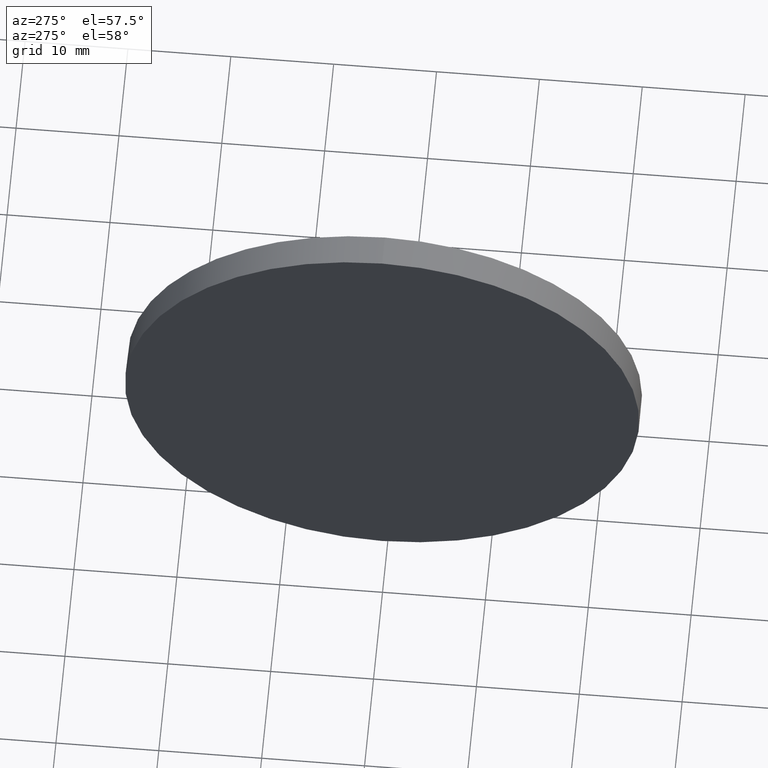
[diagram: clean part render]
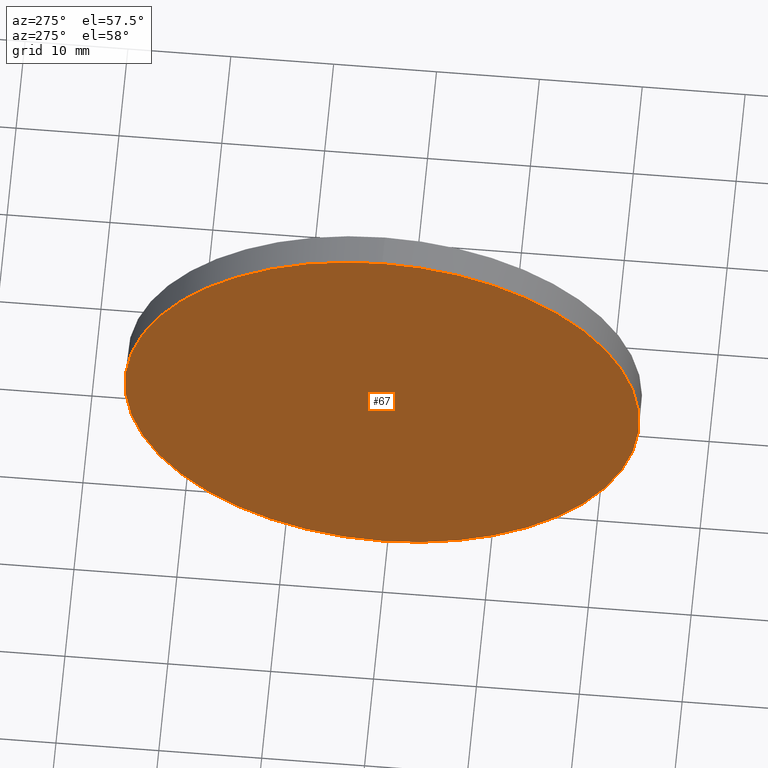
[diagram: same view with one face highlighted and labeled with its STEP entity id]
A machine part, auxiliary view. The second image highlights one B-rep face of the part: STEP entity #67.
In plain terms, the highlighted planar face has unit normal (1, 0, 0).
Its self-contained STEP definition (entity closure, byte-faithful):
#5 = CARTESIAN_POINT ( 'NONE',  ( 515.1917518471264000, 110.4965729746752500, -24.99999999999999300 ) ) ;
#23 = DIRECTION ( 'NONE',  ( -1.000000000000000000, -0.0000000000000000000, -0.0000000000000000000 ) ) ;
#28 = CARTESIAN_POINT ( 'NONE',  ( 515.1917518471264000, 110.4965729746752500, 0.0000000000000000000 ) ) ;
#44 = EDGE_LOOP ( 'NONE', ( #112, #144 ) ) ;
#51 = EDGE_CURVE ( 'NONE', #68, #141, #101, .T. ) ;
#67 = ADVANCED_FACE ( 'NONE', ( #98 ), #174, .F. ) ;
#68 = VERTEX_POINT ( 'NONE', #5 ) ;
#74 = EDGE_CURVE ( 'NONE', #141, #68, #123, .T. ) ;
#78 = CARTESIAN_POINT ( 'NONE',  ( 515.1917518471264000, 110.4965729746752500, 24.99999999999999300 ) ) ;
#88 = CARTESIAN_POINT ( 'NONE',  ( 515.1917518471264000, 110.4965729746752500, 0.0000000000000000000 ) ) ;
#98 = FACE_OUTER_BOUND ( 'NONE', #44, .T. ) ;
#101 = CIRCLE ( 'NONE', #105, 24.99999999999999300 ) ;
#103 = DIRECTION ( 'NONE',  ( 1.000000000000000000, 0.0000000000000000000, 0.0000000000000000000 ) ) ;
#105 = AXIS2_PLACEMENT_3D ( 'NONE', #28, #155, #154 ) ;
#109 = CARTESIAN_POINT ( 'NONE',  ( 515.1917518471264000, 110.4965729746752500, 0.0000000000000000000 ) ) ;
#112 = ORIENTED_EDGE ( 'NONE', *, *, #74, .T. ) ;
#116 = DIRECTION ( 'NONE',  ( 0.0000000000000000000, 0.0000000000000000000, -1.000000000000000000 ) ) ;
#123 = CIRCLE ( 'NONE', #186, 24.99999999999999300 ) ;
#134 = DIRECTION ( 'NONE',  ( 0.0000000000000000000, 0.0000000000000000000, 1.000000000000000000 ) ) ;
#141 = VERTEX_POINT ( 'NONE', #78 ) ;
#144 = ORIENTED_EDGE ( 'NONE', *, *, #51, .T. ) ;
#154 = DIRECTION ( 'NONE',  ( 0.0000000000000000000, 0.0000000000000000000, 1.000000000000000000 ) ) ;
#155 = DIRECTION ( 'NONE',  ( -1.000000000000000000, -0.0000000000000000000, -0.0000000000000000000 ) ) ;
#163 = AXIS2_PLACEMENT_3D ( 'NONE', #88, #103, #116 ) ;
#174 = PLANE ( 'NONE',  #163 ) ;
#186 = AXIS2_PLACEMENT_3D ( 'NONE', #109, #23, #134 ) ;